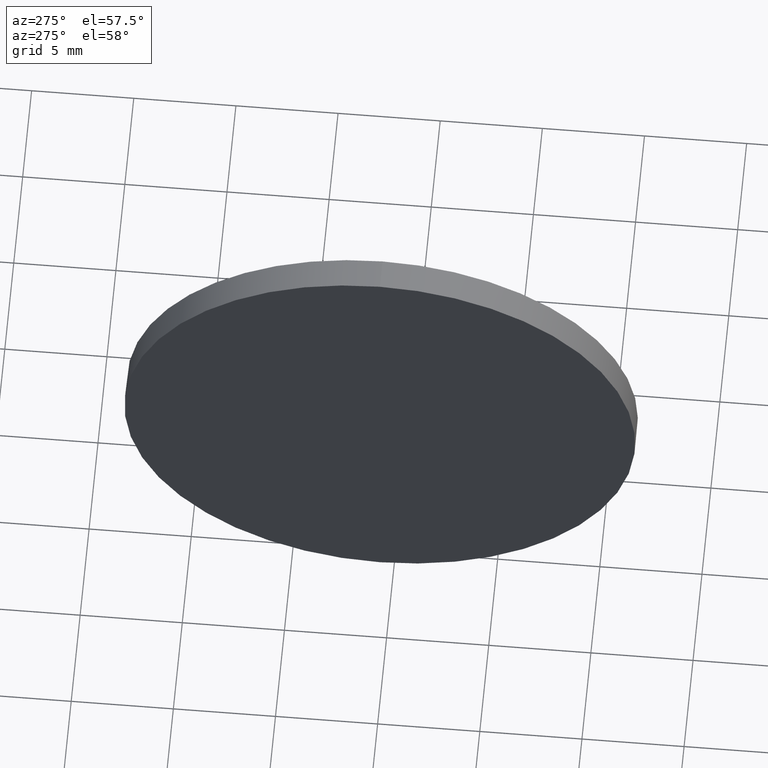
[diagram: clean part render]
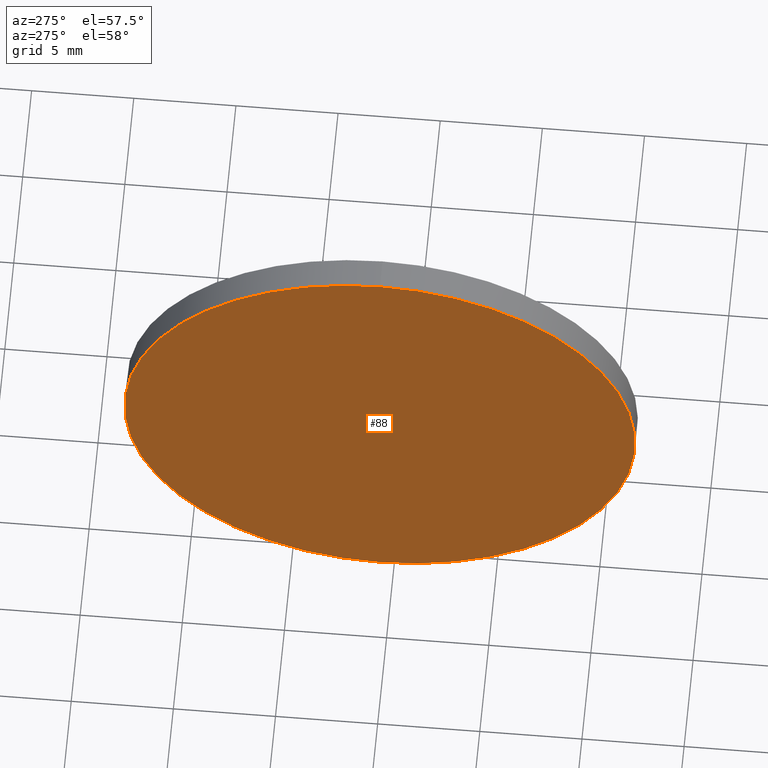
[diagram: same view with one face highlighted and labeled with its STEP entity id]
A machine part, auxiliary view. The second image highlights one B-rep face of the part: STEP entity #88.
In plain terms, the highlighted planar face has unit normal (1, 0, 0).
Its self-contained STEP definition (entity closure, byte-faithful):
#9 = CARTESIAN_POINT ( 'NONE',  ( 533.9821553744856100, 140.6810653436631100, 0.0000000000000000000 ) ) ;
#13 = DIRECTION ( 'NONE',  ( -1.000000000000000000, -0.0000000000000000000, -0.0000000000000000000 ) ) ;
#48 = VERTEX_POINT ( 'NONE', #118 ) ;
#81 = AXIS2_PLACEMENT_3D ( 'NONE', #9, #171, #138 ) ;
#87 = ORIENTED_EDGE ( 'NONE', *, *, #90, .T. ) ;
#88 = ADVANCED_FACE ( 'NONE', ( #165 ), #149, .F. ) ;
#90 = EDGE_CURVE ( 'NONE', #48, #97, #127, .T. ) ;
#91 = CIRCLE ( 'NONE', #175, 12.49999999999998400 ) ;
#92 = ORIENTED_EDGE ( 'NONE', *, *, #100, .T. ) ;
#95 = DIRECTION ( 'NONE',  ( 0.0000000000000000000, 0.0000000000000000000, 1.000000000000000000 ) ) ;
#97 = VERTEX_POINT ( 'NONE', #151 ) ;
#100 = EDGE_CURVE ( 'NONE', #97, #48, #91, .T. ) ;
#103 = CARTESIAN_POINT ( 'NONE',  ( 533.9821553744856100, 140.6810653436631100, 0.0000000000000000000 ) ) ;
#113 = EDGE_LOOP ( 'NONE', ( #87, #92 ) ) ;
#118 = CARTESIAN_POINT ( 'NONE',  ( 533.9821553744856100, 140.6810653436631100, 12.49999999999998400 ) ) ;
#119 = DIRECTION ( 'NONE',  ( 0.0000000000000000000, 0.0000000000000000000, -1.000000000000000000 ) ) ;
#123 = CARTESIAN_POINT ( 'NONE',  ( 533.9821553744856100, 140.6810653436631100, 0.0000000000000000000 ) ) ;
#127 = CIRCLE ( 'NONE', #81, 12.49999999999998400 ) ;
#138 = DIRECTION ( 'NONE',  ( 0.0000000000000000000, 0.0000000000000000000, 1.000000000000000000 ) ) ;
#146 = AXIS2_PLACEMENT_3D ( 'NONE', #103, #166, #119 ) ;
#149 = PLANE ( 'NONE',  #146 ) ;
#151 = CARTESIAN_POINT ( 'NONE',  ( 533.9821553744856100, 140.6810653436631100, -12.49999999999998400 ) ) ;
#165 = FACE_OUTER_BOUND ( 'NONE', #113, .T. ) ;
#166 = DIRECTION ( 'NONE',  ( 1.000000000000000000, 0.0000000000000000000, 0.0000000000000000000 ) ) ;
#171 = DIRECTION ( 'NONE',  ( -1.000000000000000000, -0.0000000000000000000, -0.0000000000000000000 ) ) ;
#175 = AXIS2_PLACEMENT_3D ( 'NONE', #123, #13, #95 ) ;